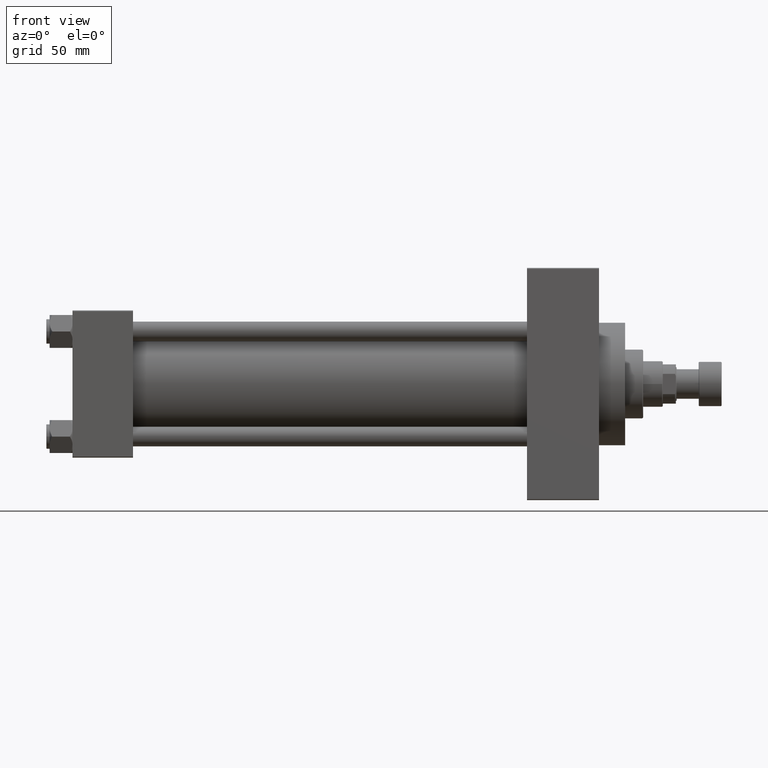
[diagram: clean part render]
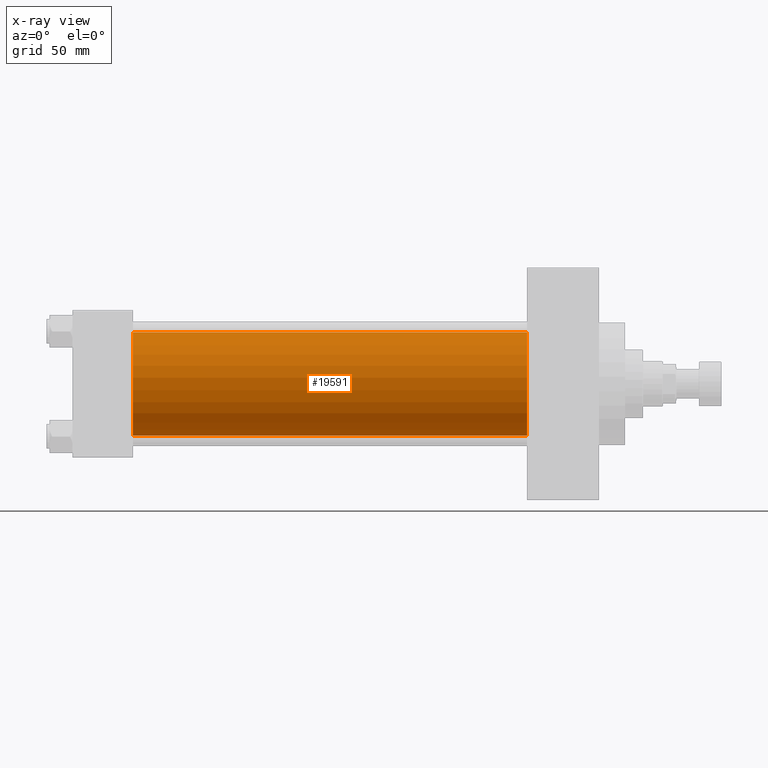
[diagram: x-ray — body ghosted, one internal face saturated and labeled with its STEP entity id]
A machine part, front view, then the same camera in x-ray: the body is ghosted and one INTERNAL B-rep face — a face not visible from any outside direction — is saturated and labeled: STEP entity #19591.
In plain terms, the highlighted cylindrical surface (partial cylindrical patch) has radius 31.5 mm, axis along (-1, -0, -0).
Its self-contained STEP definition (entity closure, byte-faithful):
#2492 = DIRECTION ( 'NONE',  ( 1.000000000000000000, 0.000000000000000000, 0.000000000000000000 ) ) ;
#2792 = AXIS2_PLACEMENT_3D ( 'NONE', #20626, #2492, #40014 ) ;
#6089 = DIRECTION ( 'NONE',  ( -1.000000000000000000, -0.000000000000000000, -0.000000000000000000 ) ) ;
#6479 = VERTEX_POINT ( 'NONE', #44233 ) ;
#7323 = DIRECTION ( 'NONE',  ( 0.000000000000000000, 0.000000000000000000, 1.000000000000000000 ) ) ;
#8606 = DIRECTION ( 'NONE',  ( 0.000000000000000000, 0.000000000000000000, -1.000000000000000000 ) ) ;
#12894 = CARTESIAN_POINT ( 'NONE',  ( 277.9999999999999432, 1.255552203348951850E-15, -31.50000000000000000 ) ) ;
#13388 = DIRECTION ( 'NONE',  ( 1.000000000000000000, 0.000000000000000000, 0.000000000000000000 ) ) ;
#13650 = FACE_OUTER_BOUND ( 'NONE', #43413, .T. ) ;
#16262 = ORIENTED_EDGE ( 'NONE', *, *, #17216, .T. ) ;
#17216 = EDGE_CURVE ( 'NONE', #17748, #45737, #31750, .T. ) ;
#17748 = VERTEX_POINT ( 'NONE', #30605 ) ;
#19253 = CIRCLE ( 'NONE', #48973, 31.50000000000000000 ) ;
#19434 = CARTESIAN_POINT ( 'NONE',  ( 277.9999999999999432, -2.602085213965210642E-15, 31.50000000000000000 ) ) ;
#19591 = ADVANCED_FACE ( 'NONE', ( #13650 ), #29014, .F. ) ;
#20626 = CARTESIAN_POINT ( 'NONE',  ( 277.9999999999999432, -2.602085213965210642E-15, 0.000000000000000000 ) ) ;
#22925 = VECTOR ( 'NONE', #49375, 1000.000000000000000 ) ;
#23134 = EDGE_CURVE ( 'NONE', #45737, #32777, #28219, .T. ) ;
#23199 = CARTESIAN_POINT ( 'NONE',  ( 277.9999999999999432, 1.255552203348951850E-15, -31.50000000000000000 ) ) ;
#24774 = ORIENTED_EDGE ( 'NONE', *, *, #40571, .F. ) ;
#28007 = CARTESIAN_POINT ( 'NONE',  ( 37.00000000000000000, -2.602085213965210642E-15, 0.000000000000000000 ) ) ;
#28219 = LINE ( 'NONE', #23199, #35024 ) ;
#29014 = CYLINDRICAL_SURFACE ( 'NONE', #29423, 31.50000000000000000 ) ;
#29423 = AXIS2_PLACEMENT_3D ( 'NONE', #44361, #6089, #7323 ) ;
#30605 = CARTESIAN_POINT ( 'NONE',  ( 277.9999999999999432, -2.602085213965210642E-15, 31.50000000000000000 ) ) ;
#31750 = CIRCLE ( 'NONE', #2792, 31.50000000000000000 ) ;
#32777 = VERTEX_POINT ( 'NONE', #41632 ) ;
#34929 = EDGE_CURVE ( 'NONE', #6479, #32777, #19253, .T. ) ;
#35024 = VECTOR ( 'NONE', #38558, 1000.000000000000000 ) ;
#38558 = DIRECTION ( 'NONE',  ( -1.000000000000000000, -0.000000000000000000, -0.000000000000000000 ) ) ;
#40014 = DIRECTION ( 'NONE',  ( 0.000000000000000000, 0.000000000000000000, -1.000000000000000000 ) ) ;
#40571 = EDGE_CURVE ( 'NONE', #17748, #6479, #42600, .T. ) ;
#41632 = CARTESIAN_POINT ( 'NONE',  ( 37.00000000000000000, 1.255552203348951850E-15, -31.50000000000000000 ) ) ;
#42600 = LINE ( 'NONE', #19434, #22925 ) ;
#43233 = ORIENTED_EDGE ( 'NONE', *, *, #23134, .T. ) ;
#43413 = EDGE_LOOP ( 'NONE', ( #16262, #43233, #49213, #24774 ) ) ;
#44233 = CARTESIAN_POINT ( 'NONE',  ( 37.00000000000000000, -2.602085213965210642E-15, 31.50000000000000000 ) ) ;
#44361 = CARTESIAN_POINT ( 'NONE',  ( 277.9999999999999432, -2.602085213965210642E-15, 0.000000000000000000 ) ) ;
#45737 = VERTEX_POINT ( 'NONE', #12894 ) ;
#48973 = AXIS2_PLACEMENT_3D ( 'NONE', #28007, #13388, #8606 ) ;
#49213 = ORIENTED_EDGE ( 'NONE', *, *, #34929, .F. ) ;
#49375 = DIRECTION ( 'NONE',  ( -1.000000000000000000, -0.000000000000000000, -0.000000000000000000 ) ) ;